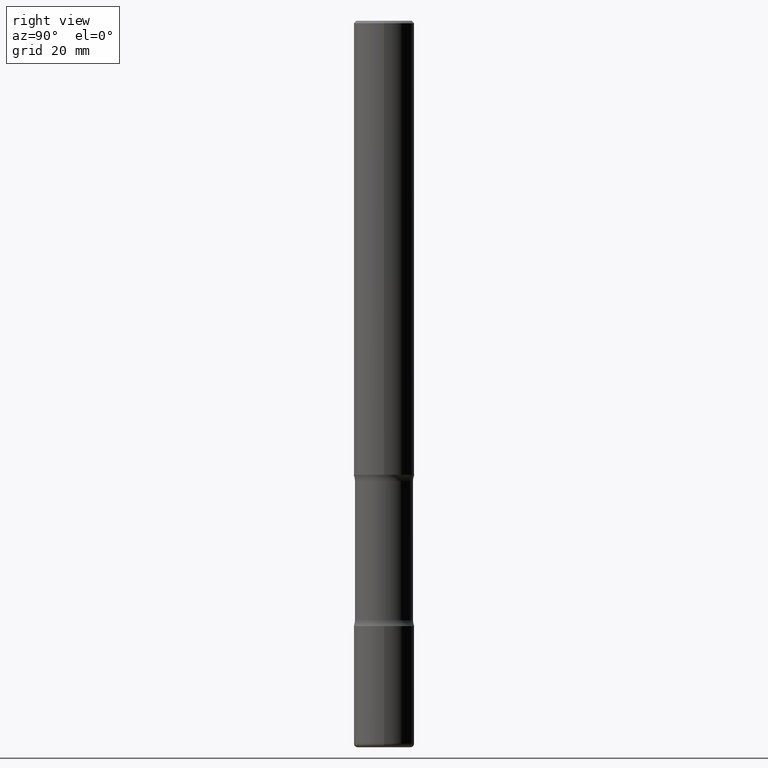
[diagram: clean part render]
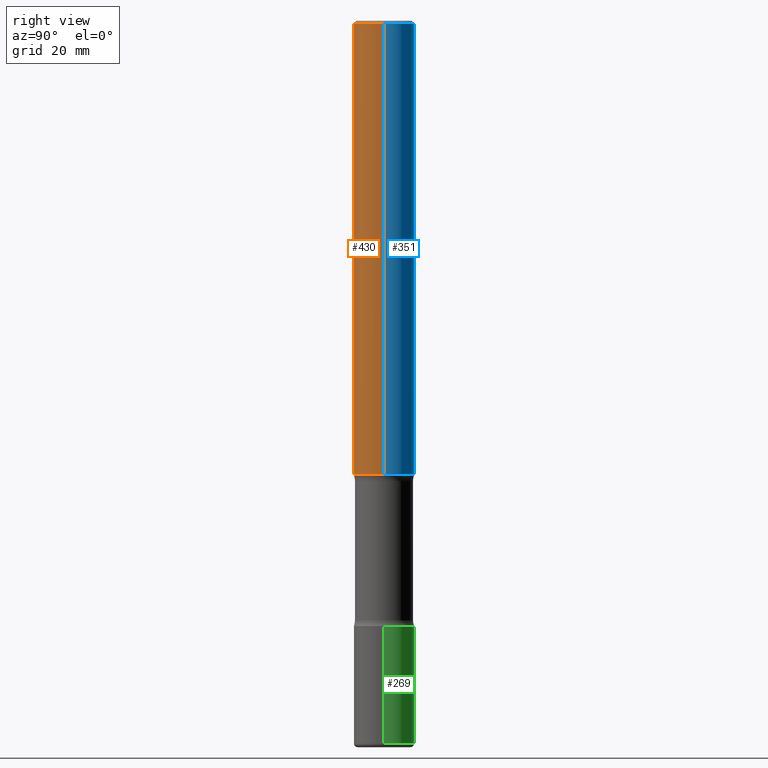
[diagram: same view with three faces highlighted in distinct colors, each labeled with its STEP entity id]
A machine part, right view with three faces highlighted in distinct colors.
Their STEP definitions:

[orange] entity #430 — the highlighted cylindrical surface (edge-blend (fillet) strip) has radius 6.35 mm, axis along (-0, 0, 1).
#1 = DIRECTION ( 'NONE',  ( -2.445468806185136597E-29, 3.491481338843145583E-15, 1.000000000000000000 ) ) ;
#23 = ORIENTED_EDGE ( 'NONE', *, *, #184, .F. ) ;
#36 = DIRECTION ( 'NONE',  ( 1.000000000000000000, -6.982962677686267499E-15, 0.000000000000000000 ) ) ;
#44 = EDGE_LOOP ( 'NONE', ( #23, #151, #320, #530 ) ) ;
#45 = DIRECTION ( 'NONE',  ( -2.445468806185136877E-29, 3.491481338843145188E-15, 1.000000000000000000 ) ) ;
#78 = VECTOR ( 'NONE', #275, 39.37007874015748143 ) ;
#96 = VERTEX_POINT ( 'NONE', #270 ) ;
#100 = CARTESIAN_POINT ( 'NONE',  ( 0.2500000000000000000, -1.745740669421566678E-15, 1.219044193948983948E-29 ) ) ;
#124 = AXIS2_PLACEMENT_3D ( 'NONE', #202, #253, #36 ) ;
#126 = CARTESIAN_POINT ( 'NONE',  ( -0.2500000000000002220, -4.805085484319072003E-15, -3.750000000000000000 ) ) ;
#133 = CIRCLE ( 'NONE', #124, 0.2499999999999997502 ) ;
#151 = ORIENTED_EDGE ( 'NONE', *, *, #340, .T. ) ;
#152 = VERTEX_POINT ( 'NONE', #221 ) ;
#173 = DIRECTION ( 'NONE',  ( 1.000000000000000000, -6.982962677686266711E-15, 4.876176775795935793E-29 ) ) ;
#181 = CIRCLE ( 'NONE', #450, 0.2500000000000002220 ) ;
#184 = EDGE_CURVE ( 'NONE', #370, #152, #321, .T. ) ;
#202 = CARTESIAN_POINT ( 'NONE',  ( 4.890937612370289799E-31, -6.982962677686315028E-17, -0.02000000000000006981 ) ) ;
#221 = CARTESIAN_POINT ( 'NONE',  ( -0.2499999999999997502, 1.675911042644701999E-15, -0.02000000000000006981 ) ) ;
#253 = DIRECTION ( 'NONE',  ( -2.445468806185136597E-29, 3.491481338843145583E-15, 1.000000000000000000 ) ) ;
#256 = FACE_OUTER_BOUND ( 'NONE', #44, .T. ) ;
#268 = CARTESIAN_POINT ( 'NONE',  ( -0.2500000000000000000, 1.776356839400250465E-15, -1.229733772563726445E-29 ) ) ;
#270 = CARTESIAN_POINT ( 'NONE',  ( 0.2500000000000002220, -1.483879569008336409E-14, -3.750000000000000000 ) ) ;
#275 = DIRECTION ( 'NONE',  ( -2.445468806185136877E-29, 3.491481338843145188E-15, 1.000000000000000000 ) ) ;
#289 = CYLINDRICAL_SURFACE ( 'NONE', #438, 0.2500000000000000000 ) ;
#303 = EDGE_CURVE ( 'NONE', #152, #400, #133, .T. ) ;
#312 = LINE ( 'NONE', #100, #319 ) ;
#319 = VECTOR ( 'NONE', #45, 39.37007874015748143 ) ;
#320 = ORIENTED_EDGE ( 'NONE', *, *, #474, .T. ) ;
#321 = LINE ( 'NONE', #268, #78 ) ;
#340 = EDGE_CURVE ( 'NONE', #370, #96, #181, .T. ) ;
#370 = VERTEX_POINT ( 'NONE', #126 ) ;
#376 = DIRECTION ( 'NONE',  ( -2.445468806185136597E-29, 3.491481338843145583E-15, 1.000000000000000000 ) ) ;
#379 = CARTESIAN_POINT ( 'NONE',  ( 9.170508023194262238E-29, -1.309305502066179741E-14, -3.750000000000000000 ) ) ;
#400 = VERTEX_POINT ( 'NONE', #471 ) ;
#422 = DIRECTION ( 'NONE',  ( 1.000000000000000000, -6.982962677686264344E-15, 0.000000000000000000 ) ) ;
#430 = ADVANCED_FACE ( 'NONE', ( #256 ), #289, .T. ) ;
#431 = CARTESIAN_POINT ( 'NONE',  ( 0.000000000000000000, 0.000000000000000000, 0.000000000000000000 ) ) ;
#438 = AXIS2_PLACEMENT_3D ( 'NONE', #431, #1, #173 ) ;
#450 = AXIS2_PLACEMENT_3D ( 'NONE', #379, #376, #422 ) ;
#471 = CARTESIAN_POINT ( 'NONE',  ( 0.2499999999999997502, -1.784954126219744217E-15, -0.02000000000000006981 ) ) ;
#474 = EDGE_CURVE ( 'NONE', #96, #400, #312, .T. ) ;
#530 = ORIENTED_EDGE ( 'NONE', *, *, #303, .F. ) ;

[blue] entity #351 — the highlighted cylindrical surface (edge-blend (fillet) strip) has radius 6.35 mm, axis along (-0, 0, 1).
#45 = DIRECTION ( 'NONE',  ( -2.445468806185136877E-29, 3.491481338843145188E-15, 1.000000000000000000 ) ) ;
#53 = AXIS2_PLACEMENT_3D ( 'NONE', #195, #491, #158 ) ;
#58 = CARTESIAN_POINT ( 'NONE',  ( 4.890937612370289799E-31, -6.982962677686315028E-17, -0.02000000000000006981 ) ) ;
#78 = VECTOR ( 'NONE', #275, 39.37007874015748143 ) ;
#96 = VERTEX_POINT ( 'NONE', #270 ) ;
#100 = CARTESIAN_POINT ( 'NONE',  ( 0.2500000000000000000, -1.745740669421566678E-15, 1.219044193948983948E-29 ) ) ;
#126 = CARTESIAN_POINT ( 'NONE',  ( -0.2500000000000002220, -4.805085484319072003E-15, -3.750000000000000000 ) ) ;
#132 = CIRCLE ( 'NONE', #220, 0.2499999999999997502 ) ;
#152 = VERTEX_POINT ( 'NONE', #221 ) ;
#154 = DIRECTION ( 'NONE',  ( -2.445468806185136597E-29, 3.491481338843145583E-15, 1.000000000000000000 ) ) ;
#158 = DIRECTION ( 'NONE',  ( 1.000000000000000000, -6.982962677686264344E-15, 0.000000000000000000 ) ) ;
#169 = ORIENTED_EDGE ( 'NONE', *, *, #524, .T. ) ;
#175 = AXIS2_PLACEMENT_3D ( 'NONE', #559, #374, #511 ) ;
#184 = EDGE_CURVE ( 'NONE', #370, #152, #321, .T. ) ;
#190 = EDGE_CURVE ( 'NONE', #400, #152, #132, .T. ) ;
#195 = CARTESIAN_POINT ( 'NONE',  ( 9.170508023194262238E-29, -1.309305502066179741E-14, -3.750000000000000000 ) ) ;
#220 = AXIS2_PLACEMENT_3D ( 'NONE', #58, #154, #496 ) ;
#221 = CARTESIAN_POINT ( 'NONE',  ( -0.2499999999999997502, 1.675911042644701999E-15, -0.02000000000000006981 ) ) ;
#263 = ORIENTED_EDGE ( 'NONE', *, *, #190, .F. ) ;
#268 = CARTESIAN_POINT ( 'NONE',  ( -0.2500000000000000000, 1.776356839400250465E-15, -1.229733772563726445E-29 ) ) ;
#270 = CARTESIAN_POINT ( 'NONE',  ( 0.2500000000000002220, -1.483879569008336409E-14, -3.750000000000000000 ) ) ;
#275 = DIRECTION ( 'NONE',  ( -2.445468806185136877E-29, 3.491481338843145188E-15, 1.000000000000000000 ) ) ;
#312 = LINE ( 'NONE', #100, #319 ) ;
#319 = VECTOR ( 'NONE', #45, 39.37007874015748143 ) ;
#321 = LINE ( 'NONE', #268, #78 ) ;
#337 = FACE_OUTER_BOUND ( 'NONE', #356, .T. ) ;
#351 = ADVANCED_FACE ( 'NONE', ( #337 ), #520, .T. ) ;
#356 = EDGE_LOOP ( 'NONE', ( #169, #551, #263, #360 ) ) ;
#360 = ORIENTED_EDGE ( 'NONE', *, *, #474, .F. ) ;
#370 = VERTEX_POINT ( 'NONE', #126 ) ;
#374 = DIRECTION ( 'NONE',  ( -2.445468806185136597E-29, 3.491481338843145583E-15, 1.000000000000000000 ) ) ;
#400 = VERTEX_POINT ( 'NONE', #471 ) ;
#471 = CARTESIAN_POINT ( 'NONE',  ( 0.2499999999999997502, -1.784954126219744217E-15, -0.02000000000000006981 ) ) ;
#474 = EDGE_CURVE ( 'NONE', #96, #400, #312, .T. ) ;
#491 = DIRECTION ( 'NONE',  ( -2.445468806185136597E-29, 3.491481338843145583E-15, 1.000000000000000000 ) ) ;
#496 = DIRECTION ( 'NONE',  ( 1.000000000000000000, -6.982962677686267499E-15, 0.000000000000000000 ) ) ;
#511 = DIRECTION ( 'NONE',  ( 1.000000000000000000, -6.982962677686266711E-15, 4.876176775795935793E-29 ) ) ;
#520 = CYLINDRICAL_SURFACE ( 'NONE', #175, 0.2500000000000000000 ) ;
#524 = EDGE_CURVE ( 'NONE', #96, #370, #556, .T. ) ;
#551 = ORIENTED_EDGE ( 'NONE', *, *, #184, .T. ) ;
#556 = CIRCLE ( 'NONE', #53, 0.2500000000000002220 ) ;
#559 = CARTESIAN_POINT ( 'NONE',  ( 0.000000000000000000, 0.000000000000000000, 0.000000000000000000 ) ) ;

[green] entity #269 — the highlighted cylindrical surface (edge-blend (fillet) strip) has radius 6.35 mm, axis along (-0, 0, 1).
#20 = ORIENTED_EDGE ( 'NONE', *, *, #76, .T. ) ;
#21 = CARTESIAN_POINT ( 'NONE',  ( 0.2500000000000002220, -1.745740669421568255E-15, 1.219044193948984929E-29 ) ) ;
#32 = DIRECTION ( 'NONE',  ( 1.000000000000000000, -6.982962677686265922E-15, 0.000000000000000000 ) ) ;
#34 = VECTOR ( 'NONE', #105, 39.37007874015748143 ) ;
#38 = CARTESIAN_POINT ( 'NONE',  ( 0.000000000000000000, 0.000000000000000000, 0.000000000000000000 ) ) ;
#42 = AXIS2_PLACEMENT_3D ( 'NONE', #38, #341, #426 ) ;
#50 = ORIENTED_EDGE ( 'NONE', *, *, #288, .F. ) ;
#76 = EDGE_CURVE ( 'NONE', #103, #95, #327, .T. ) ;
#89 = DIRECTION ( 'NONE',  ( -2.445468806185136877E-29, 3.491481338843145188E-15, 1.000000000000000000 ) ) ;
#95 = VERTEX_POINT ( 'NONE', #363 ) ;
#103 = VERTEX_POINT ( 'NONE', #112 ) ;
#105 = DIRECTION ( 'NONE',  ( -2.445468806185136877E-29, 3.491481338843145188E-15, 1.000000000000000000 ) ) ;
#112 = CARTESIAN_POINT ( 'NONE',  ( 0.2500000000000003331, -2.258988426231514917E-14, -5.969999999999999751 ) ) ;
#129 = CARTESIAN_POINT ( 'NONE',  ( 1.222734403092568523E-28, -1.745740669421572989E-14, -5.000000000000000000 ) ) ;
#178 = EDGE_CURVE ( 'NONE', #103, #388, #233, .T. ) ;
#187 = AXIS2_PLACEMENT_3D ( 'NONE', #215, #445, #442 ) ;
#215 = CARTESIAN_POINT ( 'NONE',  ( 1.459944877292526494E-28, -2.084414359289357934E-14, -5.969999999999999751 ) ) ;
#233 = LINE ( 'NONE', #21, #34 ) ;
#251 = LINE ( 'NONE', #472, #489 ) ;
#269 = ADVANCED_FACE ( 'NONE', ( #386 ), #557, .T. ) ;
#282 = EDGE_LOOP ( 'NONE', ( #20, #405, #50, #558 ) ) ;
#288 = EDGE_CURVE ( 'NONE', #388, #494, #500, .T. ) ;
#295 = DIRECTION ( 'NONE',  ( -2.445468806185136597E-29, 3.491481338843145583E-15, 1.000000000000000000 ) ) ;
#318 = CARTESIAN_POINT ( 'NONE',  ( -0.2500000000000001665, -1.737441830415440257E-14, -5.000000000000000000 ) ) ;
#327 = CIRCLE ( 'NONE', #187, 0.2500000000000002220 ) ;
#341 = DIRECTION ( 'NONE',  ( -2.445468806185136597E-29, 3.491481338843145583E-15, 1.000000000000000000 ) ) ;
#349 = AXIS2_PLACEMENT_3D ( 'NONE', #129, #295, #32 ) ;
#363 = CARTESIAN_POINT ( 'NONE',  ( -0.2500000000000003331, -1.906778675349332572E-14, -5.969999999999999751 ) ) ;
#386 = FACE_OUTER_BOUND ( 'NONE', #282, .T. ) ;
#388 = VERTEX_POINT ( 'NONE', #480 ) ;
#405 = ORIENTED_EDGE ( 'NONE', *, *, #413, .T. ) ;
#413 = EDGE_CURVE ( 'NONE', #95, #494, #251, .T. ) ;
#426 = DIRECTION ( 'NONE',  ( 1.000000000000000000, -6.982962677686266711E-15, 4.876176775795935232E-29 ) ) ;
#442 = DIRECTION ( 'NONE',  ( 1.000000000000000000, -6.982962677686272233E-15, 0.000000000000000000 ) ) ;
#445 = DIRECTION ( 'NONE',  ( -2.445468806185136597E-29, 3.491481338843145583E-15, 1.000000000000000000 ) ) ;
#472 = CARTESIAN_POINT ( 'NONE',  ( -0.2500000000000002220, 1.776356839400252042E-15, -1.229733772563727566E-29 ) ) ;
#480 = CARTESIAN_POINT ( 'NONE',  ( 0.2500000000000001665, -1.920314736363729656E-14, -5.000000000000000000 ) ) ;
#489 = VECTOR ( 'NONE', #89, 39.37007874015748143 ) ;
#494 = VERTEX_POINT ( 'NONE', #318 ) ;
#500 = CIRCLE ( 'NONE', #349, 0.2500000000000001665 ) ;
#557 = CYLINDRICAL_SURFACE ( 'NONE', #42, 0.2500000000000002220 ) ;
#558 = ORIENTED_EDGE ( 'NONE', *, *, #178, .F. ) ;